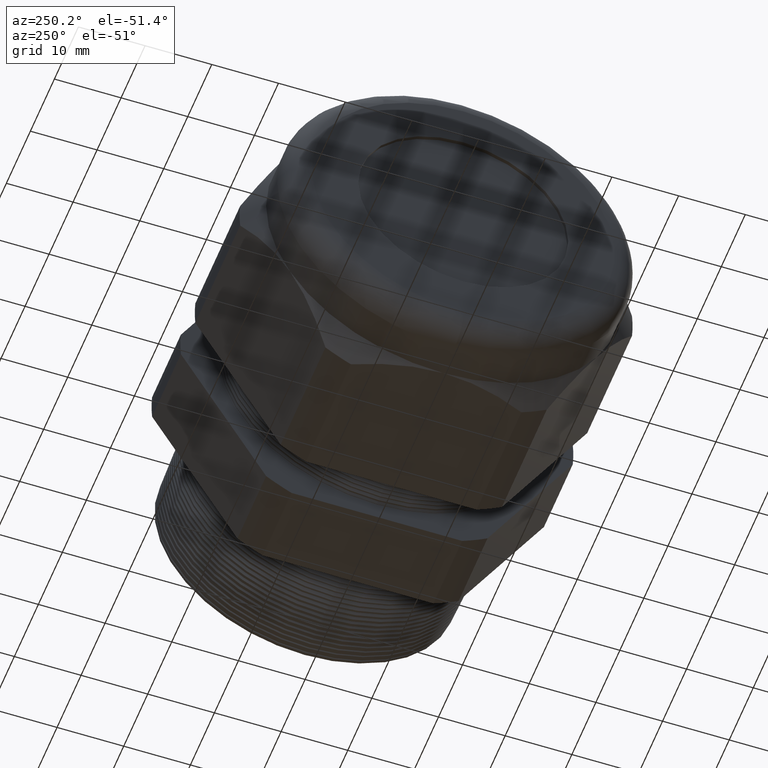
[diagram: clean part render]
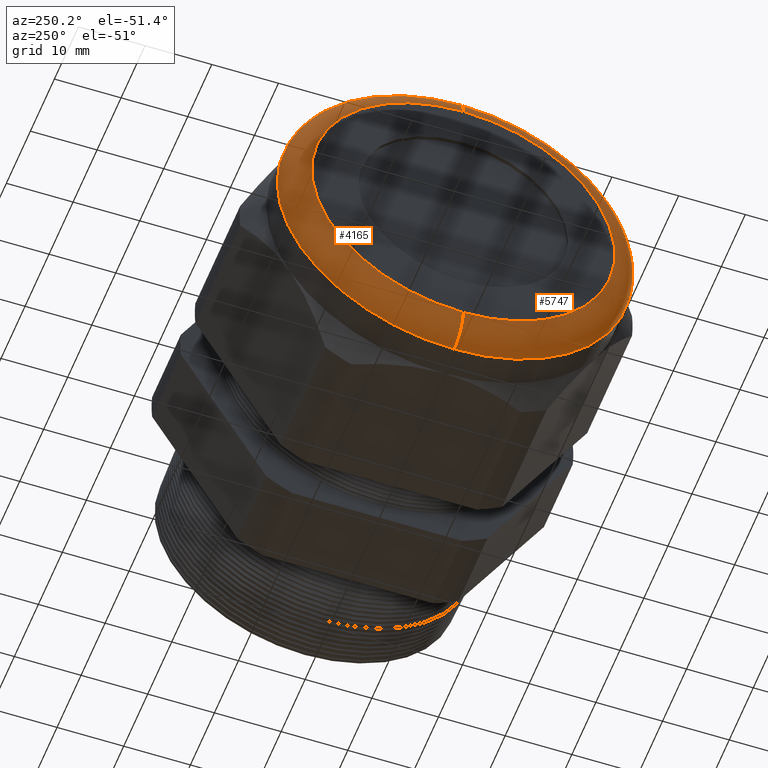
[diagram: same view with one multi-face feature highlighted, each face labeled with its STEP entity id]
A machine part, auxiliary view. The highlighted faces form ONE feature: a constant-radius fillet chain: 2 tangent blend faces with common blend radius 3.81 mm. The faces share edges in the B-rep.
Their STEP definitions:
[1] entity #4165 (Torus):
#756 = DIRECTION ( 'NONE',  ( 0.0000000000000000000, 0.0000000000000000000, 1.000000000000000000 ) ) ;
#757 = DIRECTION ( 'NONE',  ( -1.000000000000000000, 0.0000000000000000000, 0.0000000000000000000 ) ) ;
#758 = AXIS2_PLACEMENT_3D ( 'NONE', #760, #757, #756 ) ;
#759 = TOROIDAL_SURFACE ( 'NONE', #758, 0.8949999999999998000, 0.1499999999999999900 ) ;
#760 = CARTESIAN_POINT ( 'NONE',  ( -2.049999999999999800, 0.0000000000000000000, 0.0000000000000000000 ) ) ;
#761 = DIRECTION ( 'NONE',  ( 0.0000000000000000000, 0.0000000000000000000, 1.000000000000000000 ) ) ;
#762 = DIRECTION ( 'NONE',  ( 1.000000000000000000, 0.0000000000000000000, 0.0000000000000000000 ) ) ;
#763 = CARTESIAN_POINT ( 'NONE',  ( -2.049999999999999800, 0.0000000000000000000, 0.0000000000000000000 ) ) ;
#764 = AXIS2_PLACEMENT_3D ( 'NONE', #763, #762, #761 ) ;
#765 = CIRCLE ( 'NONE', #764, 1.044999999999999700 ) ;
#766 = FACE_OUTER_BOUND ( 'NONE', #4164, .T. ) ;
#767 = CARTESIAN_POINT ( 'NONE',  ( -2.049999999999999800, 0.0000000000000000000, -1.044999999999999700 ) ) ;
#768 = CARTESIAN_POINT ( 'NONE',  ( -2.049999999999999800, 1.279755905108983900E-016, 1.044999999999999700 ) ) ;
#900 = DIRECTION ( 'NONE',  ( 0.0000000000000000000, 0.0000000000000000000, -1.000000000000000000 ) ) ;
#901 = DIRECTION ( 'NONE',  ( 0.0000000000000000000, -1.000000000000000000, 0.0000000000000000000 ) ) ;
#902 = CARTESIAN_POINT ( 'NONE',  ( -2.049999999999999800, 0.0000000000000000000, 0.8949999999999998000 ) ) ;
#903 = AXIS2_PLACEMENT_3D ( 'NONE', #902, #901, #900 ) ;
#904 = CIRCLE ( 'NONE', #903, 0.1500000000000000500 ) ;
#922 = DIRECTION ( 'NONE',  ( 0.0000000000000000000, 0.0000000000000000000, 1.000000000000000000 ) ) ;
#923 = DIRECTION ( 'NONE',  ( -1.000000000000000000, 0.0000000000000000000, 0.0000000000000000000 ) ) ;
#924 = CARTESIAN_POINT ( 'NONE',  ( -2.199999999999999700, 0.0000000000000000000, 0.0000000000000000000 ) ) ;
#925 = AXIS2_PLACEMENT_3D ( 'NONE', #924, #923, #922 ) ;
#930 = CIRCLE ( 'NONE', #925, 0.8949999999999998000 ) ;
#933 = CARTESIAN_POINT ( 'NONE',  ( -2.199999999999999700, 0.0000000000000000000, 0.8949999999999998000 ) ) ;
#948 = CARTESIAN_POINT ( 'NONE',  ( -2.199999999999999700, 1.187907395172932200E-016, -0.8949999999999998000 ) ) ;
#985 = DIRECTION ( 'NONE',  ( 0.0000000000000000000, -1.224646799147352500E-016, 1.000000000000000000 ) ) ;
#986 = DIRECTION ( 'NONE',  ( 0.0000000000000000000, 1.000000000000000000, 1.224646799147353200E-016 ) ) ;
#987 = CARTESIAN_POINT ( 'NONE',  ( -2.049999999999999800, 1.096058885236880800E-016, -0.8949999999999998000 ) ) ;
#988 = AXIS2_PLACEMENT_3D ( 'NONE', #987, #986, #985 ) ;
#989 = CIRCLE ( 'NONE', #988, 0.1500000000000000500 ) ;
#4160 = VERTEX_POINT ( 'NONE', #768 ) ;
#4161 = VERTEX_POINT ( 'NONE', #767 ) ;
#4162 = EDGE_CURVE ( 'NONE', #4161, #4160, #765, .T. ) ;
#4163 = ORIENTED_EDGE ( 'NONE', *, *, #4162, .F. ) ;
#4164 = EDGE_LOOP ( 'NONE', ( #4163, #4294, #4263, #4249 ) ) ;
#4165 = ADVANCED_FACE ( 'NONE', ( #766 ), #759, .T. ) ;
#4233 = EDGE_CURVE ( 'NONE', #4160, #4255, #904, .T. ) ;
#4249 = ORIENTED_EDGE ( 'NONE', *, *, #4233, .F. ) ;
#4255 = VERTEX_POINT ( 'NONE', #933 ) ;
#4258 = EDGE_CURVE ( 'NONE', #4255, #4284, #930, .T. ) ;
#4263 = ORIENTED_EDGE ( 'NONE', *, *, #4258, .F. ) ;
#4284 = VERTEX_POINT ( 'NONE', #948 ) ;
#4294 = ORIENTED_EDGE ( 'NONE', *, *, #4299, .T. ) ;
#4299 = EDGE_CURVE ( 'NONE', #4161, #4284, #989, .T. ) ;
[2] entity #5747 (Torus):
#767 = CARTESIAN_POINT ( 'NONE',  ( -2.049999999999999800, 0.0000000000000000000, -1.044999999999999700 ) ) ;
#768 = CARTESIAN_POINT ( 'NONE',  ( -2.049999999999999800, 1.279755905108983900E-016, 1.044999999999999700 ) ) ;
#900 = DIRECTION ( 'NONE',  ( 0.0000000000000000000, 0.0000000000000000000, -1.000000000000000000 ) ) ;
#901 = DIRECTION ( 'NONE',  ( 0.0000000000000000000, -1.000000000000000000, 0.0000000000000000000 ) ) ;
#902 = CARTESIAN_POINT ( 'NONE',  ( -2.049999999999999800, 0.0000000000000000000, 0.8949999999999998000 ) ) ;
#903 = AXIS2_PLACEMENT_3D ( 'NONE', #902, #901, #900 ) ;
#904 = CIRCLE ( 'NONE', #903, 0.1500000000000000500 ) ;
#933 = CARTESIAN_POINT ( 'NONE',  ( -2.199999999999999700, 0.0000000000000000000, 0.8949999999999998000 ) ) ;
#948 = CARTESIAN_POINT ( 'NONE',  ( -2.199999999999999700, 1.187907395172932200E-016, -0.8949999999999998000 ) ) ;
#985 = DIRECTION ( 'NONE',  ( 0.0000000000000000000, -1.224646799147352500E-016, 1.000000000000000000 ) ) ;
#986 = DIRECTION ( 'NONE',  ( 0.0000000000000000000, 1.000000000000000000, 1.224646799147353200E-016 ) ) ;
#987 = CARTESIAN_POINT ( 'NONE',  ( -2.049999999999999800, 1.096058885236880800E-016, -0.8949999999999998000 ) ) ;
#988 = AXIS2_PLACEMENT_3D ( 'NONE', #987, #986, #985 ) ;
#989 = CIRCLE ( 'NONE', #988, 0.1500000000000000500 ) ;
#3028 = DIRECTION ( 'NONE',  ( 0.0000000000000000000, 0.0000000000000000000, 1.000000000000000000 ) ) ;
#3029 = DIRECTION ( 'NONE',  ( -1.000000000000000000, 0.0000000000000000000, 0.0000000000000000000 ) ) ;
#3030 = AXIS2_PLACEMENT_3D ( 'NONE', #3037, #3029, #3028 ) ;
#3031 = CIRCLE ( 'NONE', #3030, 0.8949999999999998000 ) ;
#3037 = CARTESIAN_POINT ( 'NONE',  ( -2.199999999999999700, 0.0000000000000000000, 0.0000000000000000000 ) ) ;
#3322 = DIRECTION ( 'NONE',  ( 0.0000000000000000000, 0.0000000000000000000, 1.000000000000000000 ) ) ;
#3323 = DIRECTION ( 'NONE',  ( 1.000000000000000000, 0.0000000000000000000, 0.0000000000000000000 ) ) ;
#3324 = CARTESIAN_POINT ( 'NONE',  ( -2.049999999999999800, 0.0000000000000000000, 0.0000000000000000000 ) ) ;
#3325 = AXIS2_PLACEMENT_3D ( 'NONE', #3324, #3323, #3322 ) ;
#3326 = CIRCLE ( 'NONE', #3325, 1.044999999999999700 ) ;
#3557 = FACE_OUTER_BOUND ( 'NONE', #5730, .T. ) ;
#3612 = DIRECTION ( 'NONE',  ( 0.0000000000000000000, 0.0000000000000000000, 1.000000000000000000 ) ) ;
#3613 = DIRECTION ( 'NONE',  ( -1.000000000000000000, 0.0000000000000000000, 0.0000000000000000000 ) ) ;
#3614 = CARTESIAN_POINT ( 'NONE',  ( -2.049999999999999800, 0.0000000000000000000, 0.0000000000000000000 ) ) ;
#3615 = AXIS2_PLACEMENT_3D ( 'NONE', #3614, #3613, #3612 ) ;
#3617 = TOROIDAL_SURFACE ( 'NONE', #3615, 0.8949999999999998000, 0.1499999999999999900 ) ;
#4160 = VERTEX_POINT ( 'NONE', #768 ) ;
#4161 = VERTEX_POINT ( 'NONE', #767 ) ;
#4233 = EDGE_CURVE ( 'NONE', #4160, #4255, #904, .T. ) ;
#4255 = VERTEX_POINT ( 'NONE', #933 ) ;
#4284 = VERTEX_POINT ( 'NONE', #948 ) ;
#4299 = EDGE_CURVE ( 'NONE', #4161, #4284, #989, .T. ) ;
#5456 = EDGE_CURVE ( 'NONE', #4284, #4255, #3031, .T. ) ;
#5589 = EDGE_CURVE ( 'NONE', #4160, #4161, #3326, .T. ) ;
#5720 = ORIENTED_EDGE ( 'NONE', *, *, #4299, .F. ) ;
#5723 = ORIENTED_EDGE ( 'NONE', *, *, #4233, .T. ) ;
#5725 = ORIENTED_EDGE ( 'NONE', *, *, #5456, .F. ) ;
#5726 = ORIENTED_EDGE ( 'NONE', *, *, #5589, .F. ) ;
#5730 = EDGE_LOOP ( 'NONE', ( #5720, #5726, #5723, #5725 ) ) ;
#5747 = ADVANCED_FACE ( 'NONE', ( #3557 ), #3617, .T. ) ;